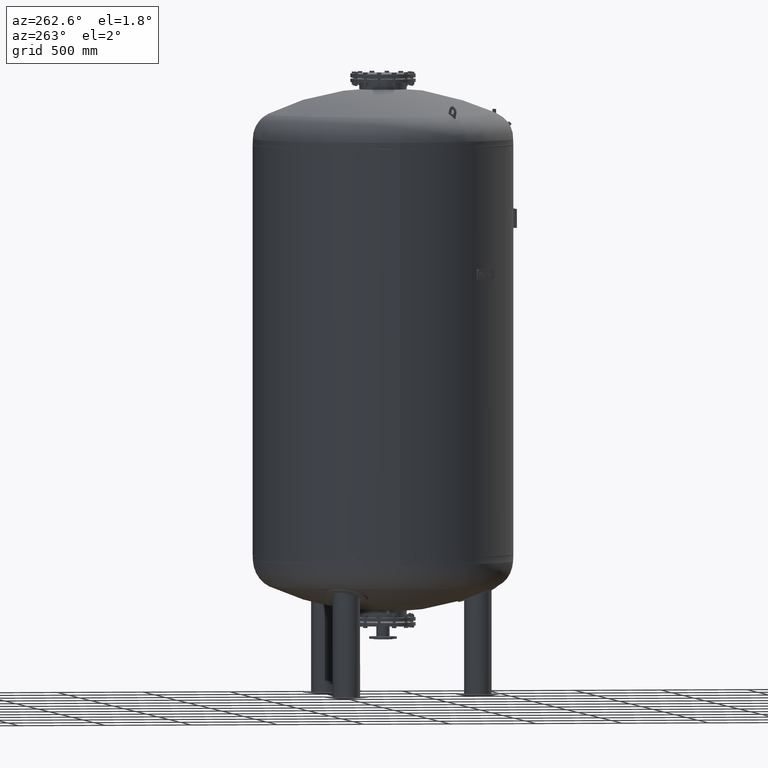
[diagram: clean part render]
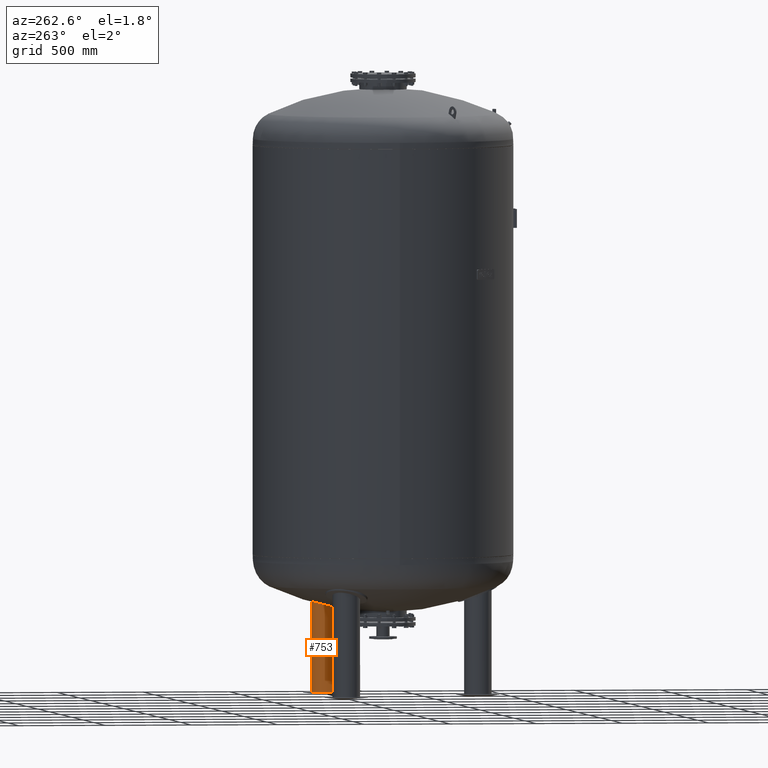
[diagram: same view with one face highlighted and labeled with its STEP entity id]
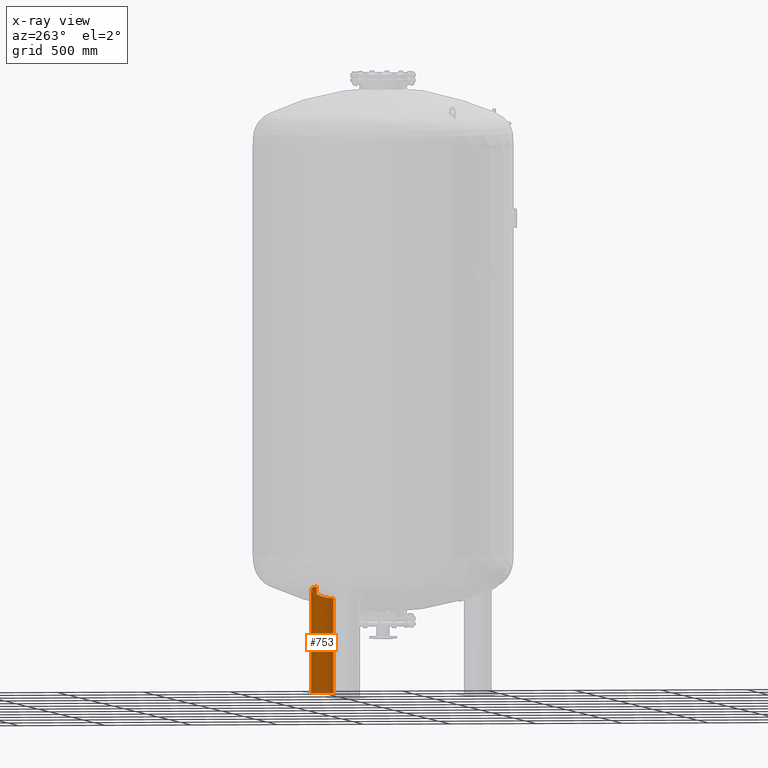
[diagram: x-ray of the same camera — body ghosted, the highlighted face saturated]
A machine part, auxiliary view. The second image highlights one B-rep face of the part: STEP entity #753.
The next image is the same camera in x-ray: the body ghosted, the highlighted face saturated — about 14% of this face is hidden behind the body in this view.
In plain terms, the highlighted cylindrical surface (edge-blend (fillet) strip) has radius 79.5 mm, axis along (-0, 0, -1).
Its self-contained STEP definition (entity closure, byte-faithful):
#687=CARTESIAN_POINT('',(476.313972081441250,274.999999999999890,15.815585141290533));
#688=DIRECTION('',(-9.184851E-017,1.590863E-016,-1.0));
#689=DIRECTION('',(0.866025403784439,0.500000000000000,0.0));
#690=AXIS2_PLACEMENT_3D('',#687,#688,#689);
#691=CYLINDRICAL_SURFACE('',#690,79.500000000000000);
#692=CARTESIAN_POINT('',(545.162991682304100,314.749999999999890,11.631170282581067));
#693=VERTEX_POINT('',#692);
#694=CARTESIAN_POINT('',(545.162991682304780,314.750000000000110,619.974328976416250));
#695=VERTEX_POINT('',#694);
#696=CARTESIAN_POINT('',(545.162991682304100,314.749999999999890,11.631170282581067));
#697=DIRECTION('',(0.0,0.0,1.0));
#698=VECTOR('',#697,608.343158693835220);
#699=LINE('',#696,#698);
#700=EDGE_CURVE('',#693,#695,#699,.T.);
#701=ORIENTED_EDGE('',*,*,#700,.F.);
#702=CARTESIAN_POINT('',(407.464952480578400,235.249999999999890,11.631170282581067));
#703=VERTEX_POINT('',#702);
#704=CARTESIAN_POINT('',(476.313972081441250,274.999999999999890,11.631170282581067));
#705=DIRECTION('',(0.0,0.0,-1.0));
#706=DIRECTION('',(0.866025403784439,0.500000000000000,0.0));
#707=AXIS2_PLACEMENT_3D('',#704,#705,#706);
#708=CIRCLE('',#707,79.500000000000000);
#709=EDGE_CURVE('',#703,#693,#708,.T.);
#710=ORIENTED_EDGE('',*,*,#709,.F.);
#711=CARTESIAN_POINT('',(407.464952480578400,235.249999999999770,557.801446445446690));
#712=VERTEX_POINT('',#711);
#713=CARTESIAN_POINT('',(407.464952480578400,235.249999999999890,11.631170282581067));
#714=DIRECTION('',(0.0,0.0,1.0));
#715=VECTOR('',#714,546.170276162865660);
#716=LINE('',#713,#715);
#717=EDGE_CURVE('',#703,#712,#716,.T.);
#718=ORIENTED_EDGE('',*,*,#717,.T.);
#719=CARTESIAN_POINT('',(435.923993297311600,343.475540259405930,588.259208461118310));
#720=VERTEX_POINT('',#719);
#721=CARTESIAN_POINT('',(407.464952480578400,235.249999999999770,557.801446445446690));
#722=CARTESIAN_POINT('',(403.404620725765540,242.282700894920990,557.801446445446690));
#723=CARTESIAN_POINT('',(400.451610787080200,249.885975801156460,558.277369662588170));
#724=CARTESIAN_POINT('',(396.597055088747990,267.270620755335530,560.328261777430270));
#725=CARTESIAN_POINT('',(396.270319464510980,276.954377197880090,562.075596332598020));
#726=CARTESIAN_POINT('',(399.072489778784760,296.341456745020710,566.734659420112730));
#727=CARTESIAN_POINT('',(402.373919211337180,305.818108910622530,569.661195647944850));
#728=CARTESIAN_POINT('',(412.496769615312990,323.583126452498560,576.486089468713540));
#729=CARTESIAN_POINT('',(419.500370050858520,331.582796994881960,580.391859104990320));
#730=CARTESIAN_POINT('',(430.379304327032230,339.969799272506860,585.699021239809100));
#731=CARTESIAN_POINT('',(433.101443881988190,341.810672620973380,586.978453284904280));
#732=CARTESIAN_POINT('',(435.923993297311600,343.475540259405930,588.259208461118310));
#733=B_SPLINE_CURVE_WITH_KNOTS('',3,(#721,#722,#723,#724,#725,#726,#727,#728,#729,#730,#731,#732),.UNSPECIFIED.,.F.,.U.,(4,2,2,2,2,4),(25.946274642103887,28.391196783303212,31.323094720106891,34.426409319311013,37.777807879739491,38.832927063684011),.UNSPECIFIED.);
#734=EDGE_CURVE('',#712,#720,#733,.T.);
#735=ORIENTED_EDGE('',*,*,#734,.T.);
#736=CARTESIAN_POINT('',(435.923993297311600,343.475540259405930,588.259208461118310));
#737=CARTESIAN_POINT('',(442.620858014037540,347.425654749982640,591.297966296069830));
#738=CARTESIAN_POINT('',(449.882913637144440,350.384943361649900,594.344322088061060));
#739=CARTESIAN_POINT('',(468.025368474697360,354.807454012759190,601.394273940897850));
#740=CARTESIAN_POINT('',(479.095487505130900,355.220505554612880,605.264897102246320));
#741=CARTESIAN_POINT('',(500.101187832981220,351.546225351953470,611.749699955350710));
#742=CARTESIAN_POINT('',(509.890893953472470,347.824400099864820,614.383971692484580));
#743=CARTESIAN_POINT('',(524.123023604612060,338.831776724313670,617.505471067215810));
#744=CARTESIAN_POINT('',(529.077385518121330,334.809706666959300,618.415766111970470));
#745=CARTESIAN_POINT('',(538.005689491232830,325.557982821373120,619.656658887407730));
#746=CARTESIAN_POINT('',(541.918381164990710,320.369830266758470,619.974328976416020));
#747=CARTESIAN_POINT('',(545.162991682303980,314.749999999999660,619.974328976416020));
#748=B_SPLINE_CURVE_WITH_KNOTS('',3,(#736,#737,#738,#739,#740,#741,#742,#743,#744,#745,#746,#747),.UNSPECIFIED.,.F.,.U.,(4,2,2,2,2,4),(38.832927063684011,41.336334230459492,44.806614551580793,48.013896662752792,49.941938919734973,51.888705230122902),.UNSPECIFIED.);
#749=EDGE_CURVE('',#720,#695,#748,.T.);
#750=ORIENTED_EDGE('',*,*,#749,.T.);
#751=EDGE_LOOP('',(#701,#710,#718,#735,#750));
#752=FACE_OUTER_BOUND('',#751,.T.);
#753=ADVANCED_FACE('',(#752),#691,.T.);